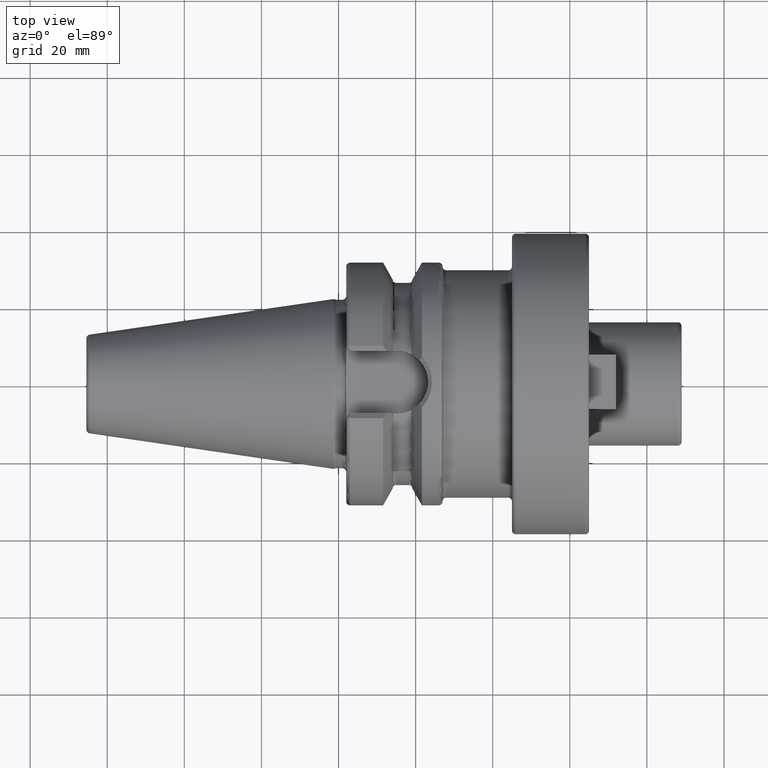
[diagram: clean part render]
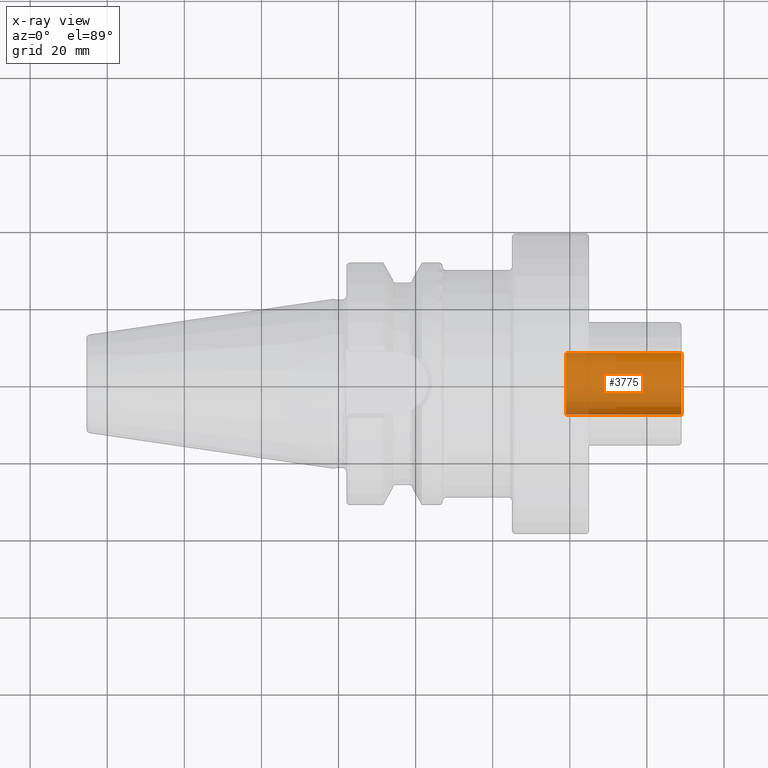
[diagram: x-ray — body ghosted, one internal face saturated and labeled with its STEP entity id]
A machine part, top view, then the same camera in x-ray: the body is ghosted and one INTERNAL B-rep face — a face not visible from any outside direction — is saturated and labeled: STEP entity #3775.
In plain terms, the highlighted cylindrical surface (edge-blend (fillet) strip) has radius 8 mm, axis along (1, 0, 0).
Its self-contained STEP definition (entity closure, byte-faithful):
#3710=CARTESIAN_POINT('',(8.9E1,0.E0,0.E0));
#3711=DIRECTION('',(-1.E0,0.E0,0.E0));
#3712=DIRECTION('',(0.E0,1.E0,0.E0));
#3713=AXIS2_PLACEMENT_3D('',#3710,#3711,#3712);
#3720=DIRECTION('',(-1.E0,0.E0,0.E0));
#3721=VECTOR('',#3720,3.E1);
#3722=CARTESIAN_POINT('',(8.9E1,8.E0,0.E0));
#3723=LINE('',#3722,#3721);
#3724=DIRECTION('',(-1.E0,0.E0,0.E0));
#3725=VECTOR('',#3724,3.E1);
#3726=CARTESIAN_POINT('',(8.9E1,-8.E0,0.E0));
#3727=LINE('',#3726,#3725);
#3728=CARTESIAN_POINT('',(5.9E1,0.E0,0.E0));
#3729=DIRECTION('',(1.E0,0.E0,0.E0));
#3730=DIRECTION('',(0.E0,-1.E0,0.E0));
#3731=AXIS2_PLACEMENT_3D('',#3728,#3729,#3730);
#3748=CARTESIAN_POINT('',(5.9E1,-8.E0,0.E0));
#3749=CARTESIAN_POINT('',(5.9E1,8.E0,0.E0));
#3750=VERTEX_POINT('',#3748);
#3751=VERTEX_POINT('',#3749);
#3752=CARTESIAN_POINT('',(8.9E1,-8.E0,0.E0));
#3753=CARTESIAN_POINT('',(8.9E1,8.E0,0.E0));
#3754=VERTEX_POINT('',#3752);
#3755=VERTEX_POINT('',#3753);
#3760=CARTESIAN_POINT('',(4.258367445015E1,0.E0,0.E0));
#3761=DIRECTION('',(1.E0,0.E0,0.E0));
#3762=DIRECTION('',(0.E0,-1.E0,0.E0));
#3763=AXIS2_PLACEMENT_3D('',#3760,#3761,#3762);
#3764=CYLINDRICAL_SURFACE('',#3763,8.E0);
#3766=ORIENTED_EDGE('',*,*,#3765,.T.);
#3768=ORIENTED_EDGE('',*,*,#3767,.T.);
#3770=ORIENTED_EDGE('',*,*,#3769,.T.);
#3772=ORIENTED_EDGE('',*,*,#3771,.F.);
#3773=EDGE_LOOP('',(#3766,#3768,#3770,#3772));
#3774=FACE_OUTER_BOUND('',#3773,.F.);
#3775=ADVANCED_FACE('',(#3774),#3764,.F.);
#3714=CIRCLE('',#3713,8.E0);
#3732=CIRCLE('',#3731,8.E0);
#3765=EDGE_CURVE('',#3755,#3754,#3714,.T.);
#3767=EDGE_CURVE('',#3754,#3750,#3727,.T.);
#3769=EDGE_CURVE('',#3750,#3751,#3732,.T.);
#3771=EDGE_CURVE('',#3755,#3751,#3723,.T.);